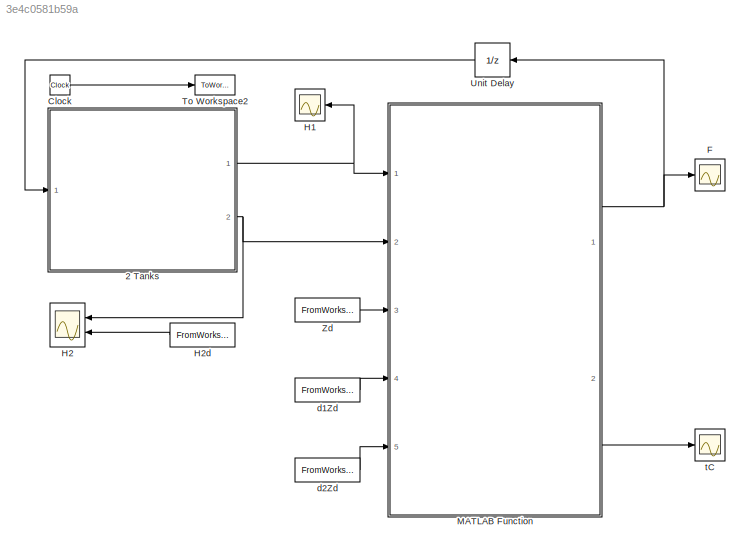
MODEL slx_3e4c0581b59a
KIND model
CONFIG AbsTol = auto
CONFIG EnableMultiTasking = on
CONFIG FixedStep = dt
CONFIG MaxStep = auto
CONFIG MinStep = auto
CONFIG RelTol = 1e-3
CONFIG SampleTimeConstraint = Unconstrained
CONFIG Solver = ode4
CONFIG SolverName = ode4
CONFIG StartTime = 0.0
CONFIG StopTime = tfinal
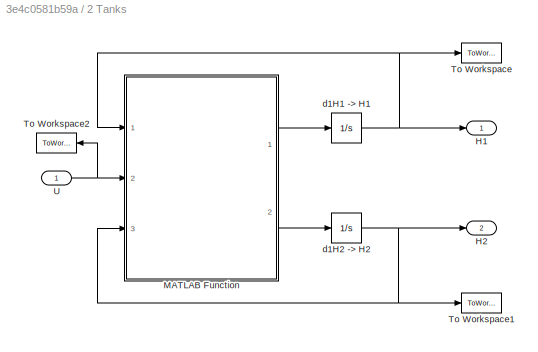
BLOCK [SubSystem] 2 Tanks
  Ports = [1, 2]
  RequestExecContextInheritance = off
BLOCK [Outport] 2 Tanks/H1
  IconDisplay = Port number
BLOCK [Outport] 2 Tanks/H2
  IconDisplay = Port number
  Port = 2
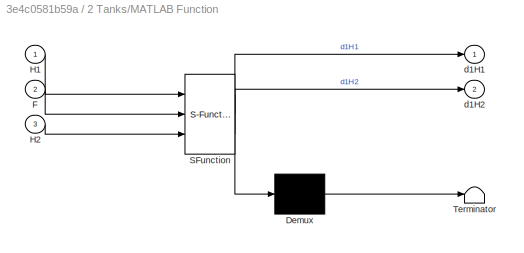
BLOCK [SubSystem] 2 Tanks/MATLAB Function
  ErrorFcn = Stateflow.Translate.translate
  PermitHierarchicalResolution = ExplicitOnly
  Ports = [3, 2]
  RequestExecContextInheritance = off
  SFBlockType = MATLAB Function
  TreatAsAtomicUnit = on
BLOCK [Demux] 2 Tanks/MATLAB Function/ Demux 
  Outputs = 1
  Ports = [1, 1]
BLOCK [S-Function] 2 Tanks/MATLAB Function/ SFunction 
  EnableBusSupport = on
  FunctionName = sf_sfun
  Parameters = Aout1,Aout2,Area1,Fnom,H2max,Qe,R2max,g,pho
  PortCounts = [3 3]
  Ports = [3, 3]
  SFcnIsStateOwnerBlock = off
  SFunctionDeploymentMode = off
  Tag = Stateflow S-Function TwoTanks_FO_R2018a 1
BLOCK [Terminator] 2 Tanks/MATLAB Function/ Terminator 
BLOCK [Inport] 2 Tanks/MATLAB Function/F
  IconDisplay = Port number
  Port = 2
BLOCK [Inport] 2 Tanks/MATLAB Function/H1
  IconDisplay = Port number
BLOCK [Inport] 2 Tanks/MATLAB Function/H2
  IconDisplay = Port number
  Port = 3
BLOCK [Outport] 2 Tanks/MATLAB Function/d1H1
  IconDisplay = Port number
BLOCK [Outport] 2 Tanks/MATLAB Function/d1H2
  IconDisplay = Port number
  Port = 2
BLOCK [ToWorkspace] 2 Tanks/To Workspace
  FixptAsFi = on
  MaxDataPoints = inf
  Ports = [1]
  SampleTime = -1
  Save2DSignal = 3-D array (concatenate along third dimension)
  VariableName = h1f
BLOCK [ToWorkspace] 2 Tanks/To Workspace1
  FixptAsFi = on
  MaxDataPoints = inf
  Ports = [1]
  SampleTime = -1
  Save2DSignal = 3-D array (concatenate along third dimension)
  VariableName = h2f
BLOCK [ToWorkspace] 2 Tanks/To Workspace2
  FixptAsFi = on
  MaxDataPoints = inf
  Ports = [1]
  SampleTime = -1
  Save2DSignal = 3-D array (concatenate along third dimension)
  VariableName = uf
BLOCK [Inport] 2 Tanks/U
  IconDisplay = Port number
BLOCK [Integrator] 2 Tanks/d1H1 -> H1
  InitialCondition = h10
  LimitOutput = on
  LowerSaturationLimit = 0
  Ports = [1, 1]
  UpperSaturationLimit = H1max
BLOCK [Integrator] 2 Tanks/d1H2 -> H2
  InitialCondition = h20
  LimitOutput = on
  LowerSaturationLimit = 0
  Ports = [1, 1]
  UpperSaturationLimit = H2max
BLOCK [Clock] Clock
BLOCK [Scope] F
  Floating = off
  NumInputPorts = 1
  Ports = [1]
  ScopeSpecificationString = Simulink.scopes.TimeScopeBlockCfg('CurrentConfiguration', extmgr.ConfigurationSet(extmgr.Configuration('Core','General UI',true),extmgr.Configuration('Core','Source UI',true),extmgr.Configuration('Sources','WiredSimulink',true,'DataLoggingSaveFormat','StructureWithTime','DataLoggingDecimation','1','DataLoggingDecimateData',true),extmgr.Configuration('Visuals','Time Domain',true,'SerializedDisplays...<+1712ch>
BLOCK [Scope] H1
  Floating = off
  NumInputPorts = 1
  Ports = [1]
  ScopeSpecificationString = Simulink.scopes.TimeScopeBlockCfg('CurrentConfiguration', extmgr.ConfigurationSet(extmgr.Configuration('Core','General UI',true),extmgr.Configuration('Core','Source UI',true),extmgr.Configuration('Sources','WiredSimulink',true,'DataLoggingVariableName','ScopeData2','DataLoggingSaveFormat','StructureWithTime','DataLoggingDecimation','1','DataLoggingDecimateData',true),extmgr.Configuration('Visuals'...<+1745ch>
BLOCK [Scope] H2
  Floating = off
  NumInputPorts = 2
  Ports = [2]
  ScopeSpecificationString = Simulink.scopes.TimeScopeBlockCfg('CurrentConfiguration', extmgr.ConfigurationSet(extmgr.Configuration('Core','General UI',true),extmgr.Configuration('Core','Source UI',true),extmgr.Configuration('Sources','WiredSimulink',true,'DataLoggingVariableName','ScopeData3','DataLoggingSaveFormat','StructureWithTime','DataLoggingDecimation','1','DataLoggingDecimateData',true),extmgr.Configuration('Visuals'...<+1673ch>
BLOCK [FromWorkspace] H2d
  OutputAfterFinalValue = Holding final value
  SampleTime = 0
  VariableName = [t' H2d']
  ZeroCross = on
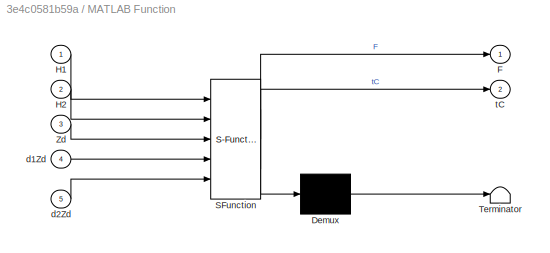
BLOCK [SubSystem] MATLAB Function
  ErrorFcn = Stateflow.Translate.translate
  PermitHierarchicalResolution = ExplicitOnly
  Ports = [5, 2]
  RequestExecContextInheritance = off
  SFBlockType = MATLAB Function
  TreatAsAtomicUnit = on
BLOCK [Demux] MATLAB Function/ Demux 
  Outputs = 1
  Ports = [1, 1]
BLOCK [S-Function] MATLAB Function/ SFunction 
  EnableBusSupport = on
  FunctionName = sf_sfun
  Parameters = K0,K1,a1,a2,a3,a4
  PortCounts = [5 3]
  Ports = [5, 3]
  SFcnIsStateOwnerBlock = off
  SFunctionDeploymentMode = off
  Tag = Stateflow S-Function TwoTanks_FO_R2018a 2
BLOCK [Terminator] MATLAB Function/ Terminator 
BLOCK [Outport] MATLAB Function/F
  IconDisplay = Port number
BLOCK [Inport] MATLAB Function/H1
  IconDisplay = Port number
BLOCK [Inport] MATLAB Function/H2
  IconDisplay = Port number
  Port = 2
BLOCK [Inport] MATLAB Function/Zd
  IconDisplay = Port number
  Port = 3
BLOCK [Inport] MATLAB Function/d1Zd
  IconDisplay = Port number
  Port = 4
BLOCK [Inport] MATLAB Function/d2Zd
  IconDisplay = Port number
  Port = 5
BLOCK [Outport] MATLAB Function/tC
  IconDisplay = Port number
  Port = 2
BLOCK [ToWorkspace] To Workspace2
  FixptAsFi = on
  MaxDataPoints = inf
  Ports = [1]
  SampleTime = -1
  Save2DSignal = 3-D array (concatenate along third dimension)
  VariableName = tf
BLOCK [UnitDelay] Unit Delay
  InputProcessing = Elements as channels (sample based)
  SampleTime = -1
BLOCK [FromWorkspace] Zd
  OutputAfterFinalValue = Holding final value
  SampleTime = 0
  VariableName = [t' Zd']
  ZeroCross = on
BLOCK [FromWorkspace] d1Zd
  OutputAfterFinalValue = Holding final value
  SampleTime = 0
  VariableName = [t' d1Zd']
  ZeroCross = on
BLOCK [FromWorkspace] d2Zd
  OutputAfterFinalValue = Holding final value
  SampleTime = 0
  VariableName = [t' d2Zd']
  ZeroCross = on
BLOCK [Scope] tC
  Floating = off
  NumInputPorts = 1
  Ports = [1]
  ScopeSpecificationString = Simulink.scopes.TimeScopeBlockCfg('CurrentConfiguration', extmgr.ConfigurationSet(extmgr.Configuration('Core','General UI',true),extmgr.Configuration('Core','Source UI',true),extmgr.Configuration('Sources','WiredSimulink',true,'DataLoggingVariableName','ScopeData8','DataLoggingSaveFormat','StructureWithTime','DataLoggingDecimation','1','DataLoggingDecimateData',true),extmgr.Configuration('Visuals'...<+1701ch>
LINE 2 Tanks/MATLAB Function:1 -> 2 Tanks/d1H1 -> H1:1
LINE 2 Tanks/MATLAB Function:2 -> 2 Tanks/d1H2 -> H2:1
NET 2 Tanks/U:1 -> 2 Tanks/MATLAB Function:2, 2 Tanks/To Workspace2:1
NET 2 Tanks/d1H1 -> H1:1 -> 2 Tanks/H1:1, 2 Tanks/MATLAB Function:1, 2 Tanks/To Workspace:1
NET 2 Tanks/d1H2 -> H2:1 -> 2 Tanks/H2:1, 2 Tanks/MATLAB Function:3, 2 Tanks/To Workspace1:1
NET 2 Tanks:1 -> H1:1, MATLAB Function:1
NET 2 Tanks:2 -> H2:1, MATLAB Function:2
LINE Clock:1 -> To Workspace2:1
LINE H2d:1 -> H2:2
NET MATLAB Function:1 -> F:1, Unit Delay:1
LINE MATLAB Function:2 -> tC:1
LINE Unit Delay:1 -> 2 Tanks:1
LINE Zd:1 -> MATLAB Function:3
LINE d1Zd:1 -> MATLAB Function:4
LINE d2Zd:1 -> MATLAB Function:5
note: NET lines group one-source signal fan-out (src -> all destinations, sorted); 1:1 wires keep LINE
CHART 2 Tanks/MATLAB Function states=1 transitions=1
  STATE_LABEL 'eML_blk_kernel()'
  STATE_LABEL 'SCRIPT:\nfunction [d1H1, d1H2] = TwoTanks(H1, F, H2, pho, Fnom, Area1, Aout2, H2max, Aout1, g, Qe, R2max)\n\n  % Parametros - d1H1\n    num1 = Qe;\n    den1 = pho*Area1*(Fnom);\n    num2 = Aout1*sqrt(2*g);\n    den2 = Area1;\n  \n  % Parametros - d1H2\n    num3 = Aout1*sqrt(2*g)*H2max^2;\n    den3 = pi*R2max^2;\n    num4 = Aout2*sqrt(2*g)*H2max^2;\n    den4 = pi*R2max^2;\n  \n  % Sistema Dinâmico\n    d1H1 = (num...<+110ch>'
CHART MATLAB Function states=1 transitions=1
  STATE_LABEL 'eML_blk_kernel()'
  STATE_LABEL 'SCRIPT:\nfunction [F, tC]  = Controle_Flatness(H1, H2, K1, K0, Zd, d1Zd, d2Zd, a1, a2, a3, a4)\n \n  % Gerando Z e d1Z\n    Z = H2;\n    d1Z = a3*(sqrt(H1)/(H2^2)) - a4/(H2^1.5);\n    \n  % Termo de Correção em Malha Fechada\n    tC = d2Zd - K1*(d1Z - d1Zd) - K0*(Z - Zd); \n    \n  % Gerando a expressão final para os controladores\n    F = ((2*Z^(5/2)*a4 + 2*Z^4*d1Z)/(a1*a3^2))*tC + (a4^2*d1Z + 4*H2^3*d1Z^3 ...<+205ch>'
